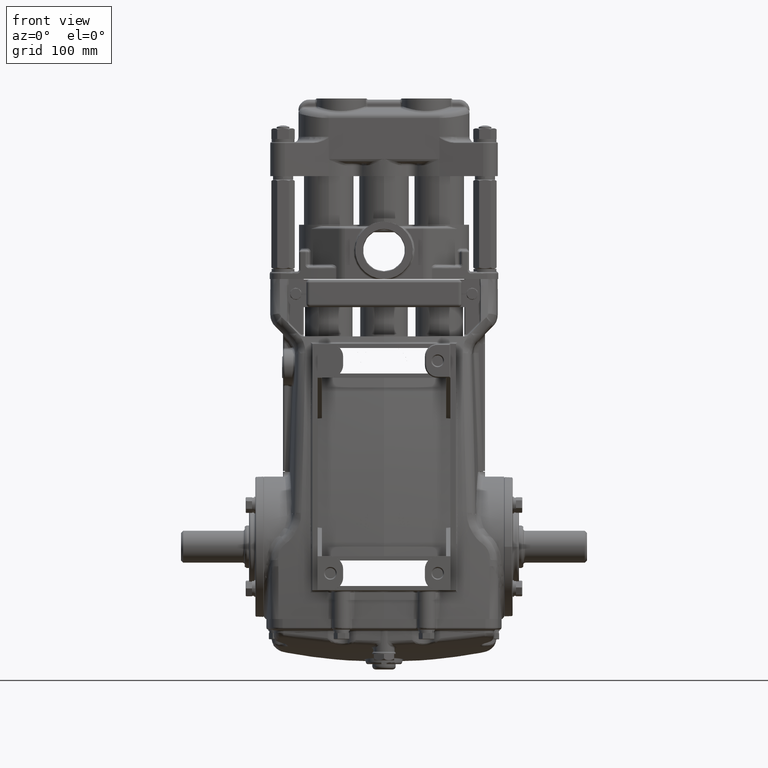
[diagram: clean part render]
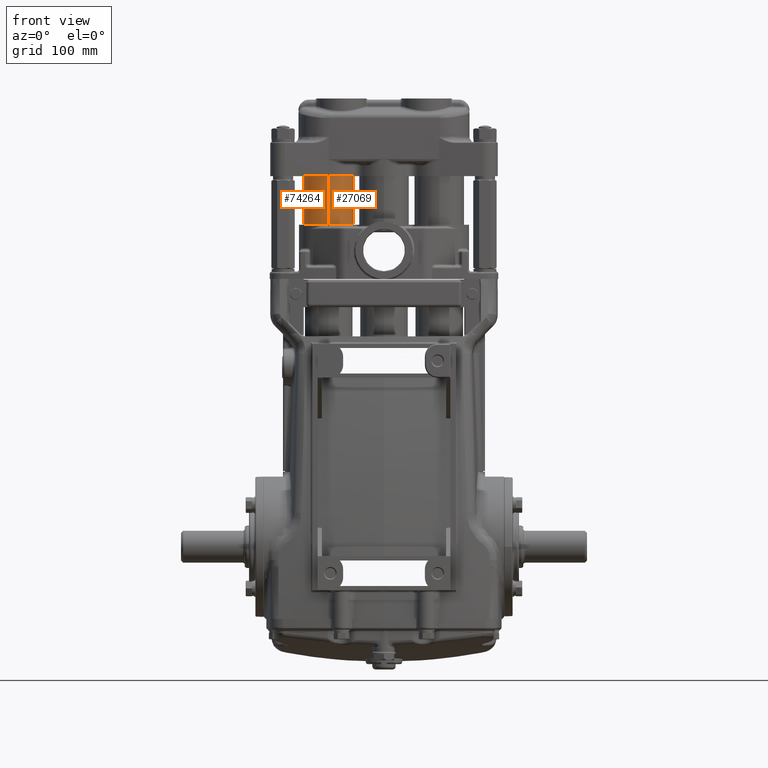
[diagram: same view with one multi-face feature highlighted, each face labeled with its STEP entity id]
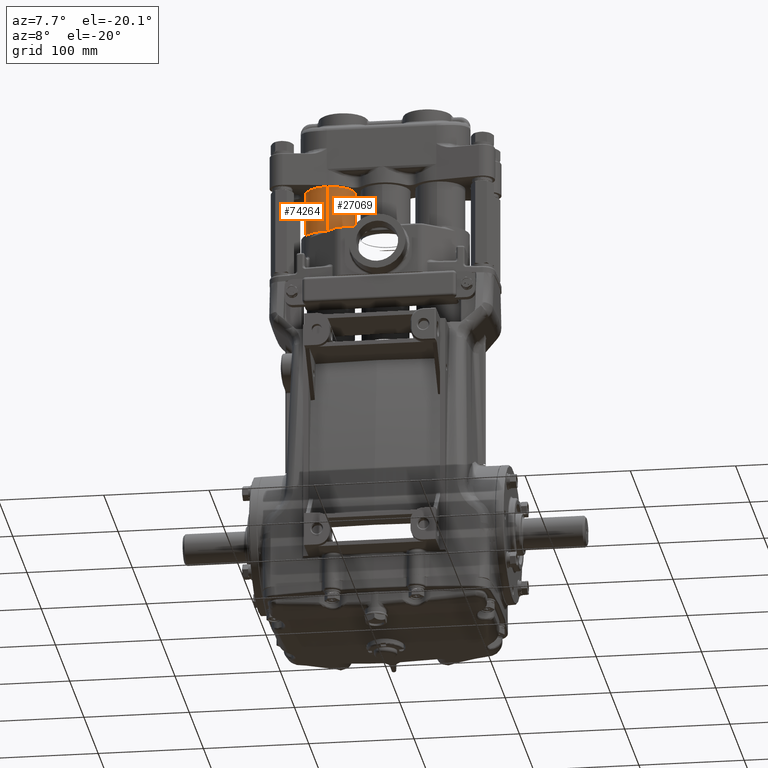
[diagram: same view with one multi-face feature highlighted, each face labeled with its STEP entity id]
A machine part, front view. The highlighted faces form ONE feature: a constant-radius fillet chain: 2 tangent blend faces with common blend radius 23.5 mm. The faces share edges in the B-rep.
A second angle (auxiliary view) of the same feature is appended — it is thin or edge-on in the first view.
Their STEP definitions:
[1] entity #74264 (Cylinder):
#2176 = EDGE_CURVE ( 'NONE', #74478, #95401, #67649, .T. ) ;
#3540 = EDGE_CURVE ( 'NONE', #70146, #32790, #55934, .T. ) ;
#7146 = EDGE_CURVE ( 'NONE', #74478, #70146, #21004, .T. ) ;
#7743 = EDGE_LOOP ( 'NONE', ( #82155, #83841, #41968, #84880 ) ) ;
#12371 = AXIS2_PLACEMENT_3D ( 'NONE', #14325, #46563, #78787 ) ;
#14325 = CARTESIAN_POINT ( 'NONE',  ( -2.047244094488188892, -1.092739197465705287E-15, 11.53543307086614078 ) ) ;
#16126 = CARTESIAN_POINT ( 'NONE',  ( -2.047244094488188892, -0.9251968503937015864, 11.78346456692913158 ) ) ;
#17697 = DIRECTION ( 'NONE',  ( -0.000000000000000000, 1.224606353822377505E-16, -1.000000000000000000 ) ) ;
#18516 = DIRECTION ( 'NONE',  ( -0.000000000000000000, 1.224606353822377505E-16, -1.000000000000000000 ) ) ;
#21004 = LINE ( 'NONE', #29948, #55819 ) ;
#22163 = DIRECTION ( 'NONE',  ( 0.000000000000000000, 1.000000000000000000, 0.000000000000000000 ) ) ;
#23088 = DIRECTION ( 'NONE',  ( -0.000000000000000000, 1.224606353822377505E-16, -1.000000000000000000 ) ) ;
#28505 = CARTESIAN_POINT ( 'NONE',  ( -2.047244094488188892, -0.9251968503937021415, 13.84645669291338521 ) ) ;
#29948 = CARTESIAN_POINT ( 'NONE',  ( -2.047244094488188892, -0.9251968503937018085, 11.53543307086614078 ) ) ;
#31211 = FACE_OUTER_BOUND ( 'NONE', #7743, .T. ) ;
#32790 = VERTEX_POINT ( 'NONE', #80943 ) ;
#38961 = AXIS2_PLACEMENT_3D ( 'NONE', #67116, #18516, #101311 ) ;
#39044 = CARTESIAN_POINT ( 'NONE',  ( -2.047244094488188892, -1.123113292068386411E-15, 11.78346456692913158 ) ) ;
#39132 = VECTOR ( 'NONE', #17697, 39.37007874015748143 ) ;
#41968 = ORIENTED_EDGE ( 'NONE', *, *, #95365, .T. ) ;
#46563 = DIRECTION ( 'NONE',  ( -0.000000000000000000, 1.224606353822377505E-16, -1.000000000000000000 ) ) ;
#55819 = VECTOR ( 'NONE', #23088, 39.37007874015748143 ) ;
#55934 = CIRCLE ( 'NONE', #79563, 0.9251968503937005872 ) ;
#67116 = CARTESIAN_POINT ( 'NONE',  ( -2.047244094488188892, -1.375748618604971249E-15, 13.84645669291338521 ) ) ;
#67336 = LINE ( 'NONE', #83191, #39132 ) ;
#67649 = CIRCLE ( 'NONE', #38961, 0.9251968503937008093 ) ;
#70146 = VERTEX_POINT ( 'NONE', #16126 ) ;
#74264 = ADVANCED_FACE ( 'NONE', ( #31211 ), #87233, .T. ) ;
#74478 = VERTEX_POINT ( 'NONE', #28505 ) ;
#75260 = CARTESIAN_POINT ( 'NONE',  ( -2.047244094488188892, 0.9251968503936994770, 13.84645669291338521 ) ) ;
#78787 = DIRECTION ( 'NONE',  ( 0.000000000000000000, 1.000000000000000000, 0.000000000000000000 ) ) ;
#79563 = AXIS2_PLACEMENT_3D ( 'NONE', #39044, #104069, #22163 ) ;
#80943 = CARTESIAN_POINT ( 'NONE',  ( -2.047244094488188892, 0.9251968503936994770, 11.78346456692913158 ) ) ;
#82155 = ORIENTED_EDGE ( 'NONE', *, *, #7146, .F. ) ;
#83191 = CARTESIAN_POINT ( 'NONE',  ( -2.047244094488188892, 0.9251968503936995880, 11.53543307086614078 ) ) ;
#83841 = ORIENTED_EDGE ( 'NONE', *, *, #2176, .T. ) ;
#84880 = ORIENTED_EDGE ( 'NONE', *, *, #3540, .F. ) ;
#87233 = CYLINDRICAL_SURFACE ( 'NONE', #12371, 0.9251968503937006982 ) ;
#95365 = EDGE_CURVE ( 'NONE', #95401, #32790, #67336, .T. ) ;
#95401 = VERTEX_POINT ( 'NONE', #75260 ) ;
#101311 = DIRECTION ( 'NONE',  ( 0.000000000000000000, 1.000000000000000000, 0.000000000000000000 ) ) ;
#104069 = DIRECTION ( 'NONE',  ( -0.000000000000000000, 1.224606353822377505E-16, -1.000000000000000000 ) ) ;
[2] entity #27069 (Cylinder):
#4519 = AXIS2_PLACEMENT_3D ( 'NONE', #38716, #29247, #46690 ) ;
#7146 = EDGE_CURVE ( 'NONE', #74478, #70146, #21004, .T. ) ;
#11335 = CARTESIAN_POINT ( 'NONE',  ( -2.047244094488188892, -1.092739197465705287E-15, 11.53543307086614078 ) ) ;
#16126 = CARTESIAN_POINT ( 'NONE',  ( -2.047244094488188892, -0.9251968503937015864, 11.78346456692913158 ) ) ;
#16403 = DIRECTION ( 'NONE',  ( 0.000000000000000000, 1.000000000000000000, 0.000000000000000000 ) ) ;
#17130 = FACE_OUTER_BOUND ( 'NONE', #63019, .T. ) ;
#17697 = DIRECTION ( 'NONE',  ( -0.000000000000000000, 1.224606353822377505E-16, -1.000000000000000000 ) ) ;
#21004 = LINE ( 'NONE', #29948, #55819 ) ;
#23088 = DIRECTION ( 'NONE',  ( -0.000000000000000000, 1.224606353822377505E-16, -1.000000000000000000 ) ) ;
#27069 = ADVANCED_FACE ( 'NONE', ( #17130 ), #99038, .T. ) ;
#27329 = ORIENTED_EDGE ( 'NONE', *, *, #80452, .T. ) ;
#28073 = CIRCLE ( 'NONE', #4519, 0.9251968503937008093 ) ;
#28505 = CARTESIAN_POINT ( 'NONE',  ( -2.047244094488188892, -0.9251968503937021415, 13.84645669291338521 ) ) ;
#29247 = DIRECTION ( 'NONE',  ( -0.000000000000000000, 1.224606353822377505E-16, -1.000000000000000000 ) ) ;
#29948 = CARTESIAN_POINT ( 'NONE',  ( -2.047244094488188892, -0.9251968503937018085, 11.53543307086614078 ) ) ;
#32790 = VERTEX_POINT ( 'NONE', #80943 ) ;
#38716 = CARTESIAN_POINT ( 'NONE',  ( -2.047244094488188892, -1.375748618604971249E-15, 13.84645669291338521 ) ) ;
#39132 = VECTOR ( 'NONE', #17697, 39.37007874015748143 ) ;
#43527 = DIRECTION ( 'NONE',  ( 0.000000000000000000, 1.000000000000000000, 0.000000000000000000 ) ) ;
#46690 = DIRECTION ( 'NONE',  ( 0.000000000000000000, 1.000000000000000000, 0.000000000000000000 ) ) ;
#47058 = DIRECTION ( 'NONE',  ( -0.000000000000000000, 1.224606353822377505E-16, -1.000000000000000000 ) ) ;
#48034 = ORIENTED_EDGE ( 'NONE', *, *, #95365, .F. ) ;
#55819 = VECTOR ( 'NONE', #23088, 39.37007874015748143 ) ;
#63019 = EDGE_LOOP ( 'NONE', ( #27329, #69322, #65546, #48034 ) ) ;
#65546 = ORIENTED_EDGE ( 'NONE', *, *, #77363, .F. ) ;
#67336 = LINE ( 'NONE', #83191, #39132 ) ;
#69322 = ORIENTED_EDGE ( 'NONE', *, *, #7146, .T. ) ;
#70146 = VERTEX_POINT ( 'NONE', #16126 ) ;
#73663 = DIRECTION ( 'NONE',  ( -0.000000000000000000, 1.224606353822377505E-16, -1.000000000000000000 ) ) ;
#74478 = VERTEX_POINT ( 'NONE', #28505 ) ;
#75154 = CIRCLE ( 'NONE', #83614, 0.9251968503937005872 ) ;
#75260 = CARTESIAN_POINT ( 'NONE',  ( -2.047244094488188892, 0.9251968503936994770, 13.84645669291338521 ) ) ;
#77363 = EDGE_CURVE ( 'NONE', #32790, #70146, #75154, .T. ) ;
#80452 = EDGE_CURVE ( 'NONE', #95401, #74478, #28073, .T. ) ;
#80592 = AXIS2_PLACEMENT_3D ( 'NONE', #11335, #73663, #43527 ) ;
#80849 = CARTESIAN_POINT ( 'NONE',  ( -2.047244094488188892, -1.123113292068386411E-15, 11.78346456692913158 ) ) ;
#80943 = CARTESIAN_POINT ( 'NONE',  ( -2.047244094488188892, 0.9251968503936994770, 11.78346456692913158 ) ) ;
#83191 = CARTESIAN_POINT ( 'NONE',  ( -2.047244094488188892, 0.9251968503936995880, 11.53543307086614078 ) ) ;
#83614 = AXIS2_PLACEMENT_3D ( 'NONE', #80849, #47058, #16403 ) ;
#95365 = EDGE_CURVE ( 'NONE', #95401, #32790, #67336, .T. ) ;
#95401 = VERTEX_POINT ( 'NONE', #75260 ) ;
#99038 = CYLINDRICAL_SURFACE ( 'NONE', #80592, 0.9251968503937006982 ) ;